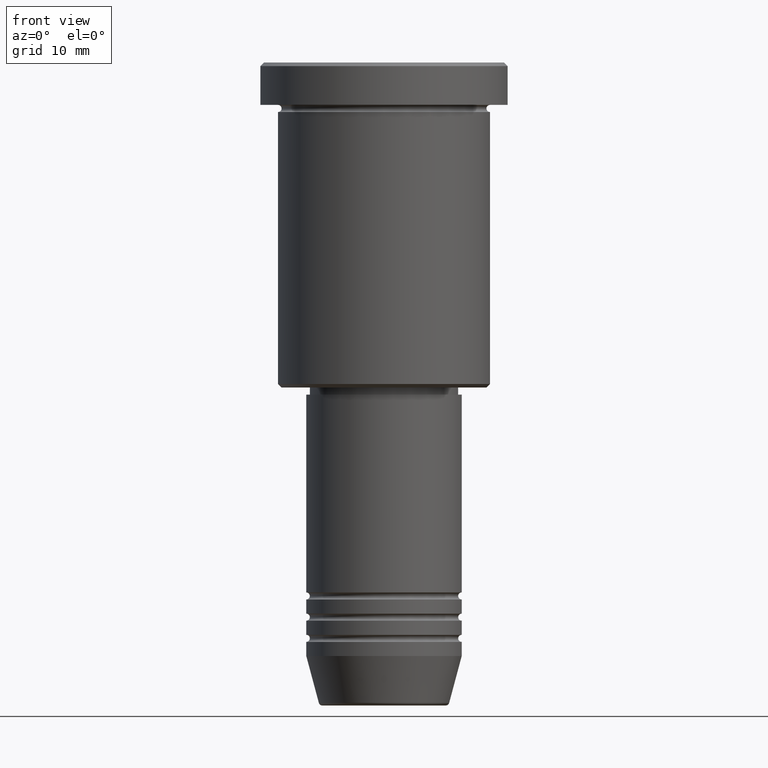
[diagram: clean part render]
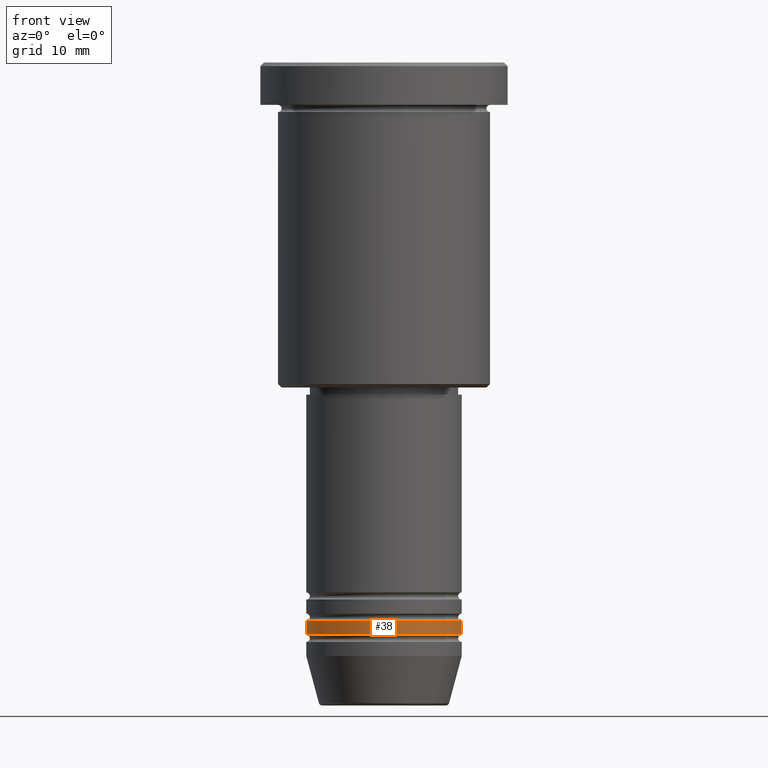
[diagram: same view with one face highlighted and labeled with its STEP entity id]
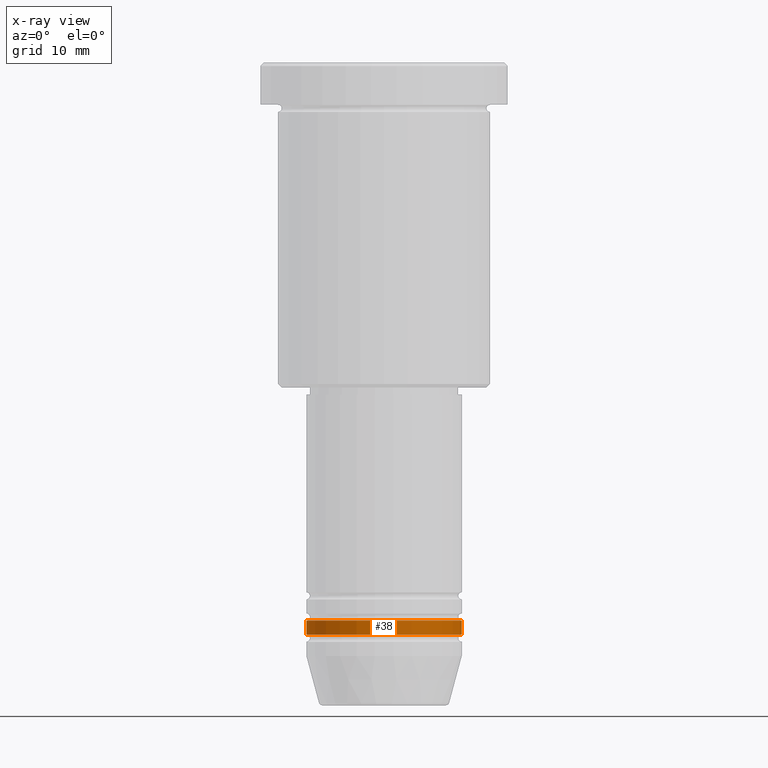
[diagram: x-ray of the same camera — body ghosted, the highlighted face saturated]
A machine part, front view. The second image highlights one B-rep face of the part: STEP entity #38.
The next image is the same camera in x-ray: the body ghosted, the highlighted face saturated — about 0% of this face is hidden behind the body in this view.
In plain terms, the highlighted cylindrical surface (partial cylindrical patch) has radius 11 mm, axis along (-0, -0, 1).
Its self-contained STEP definition (entity closure, byte-faithful):
#37 = LINE ( 'NONE', #1025, #930 ) ;
#38 = ADVANCED_FACE ( 'NONE', ( #492 ), #477, .T. ) ;
#56 = VERTEX_POINT ( 'NONE', #909 ) ;
#60 = AXIS2_PLACEMENT_3D ( 'NONE', #529, #1060, #1158 ) ;
#116 = DIRECTION ( 'NONE',  ( -0.000000000000000000, -0.000000000000000000, 1.000000000000000000 ) ) ;
#151 = CARTESIAN_POINT ( 'NONE',  ( 11.00000000000000000, 0.000000000000000000, -80.99999999999997158 ) ) ;
#209 = VECTOR ( 'NONE', #585, 1000.000000000000000 ) ;
#301 = EDGE_CURVE ( 'NONE', #882, #343, #850, .T. ) ;
#333 = AXIS2_PLACEMENT_3D ( 'NONE', #707, #897, #1063 ) ;
#343 = VERTEX_POINT ( 'NONE', #1179 ) ;
#396 = CARTESIAN_POINT ( 'NONE',  ( -11.00000000000000000, 1.347111479062088405E-15, 0.000000000000000000 ) ) ;
#409 = LINE ( 'NONE', #396, #209 ) ;
#477 = CYLINDRICAL_SURFACE ( 'NONE', #600, 11.00000000000000000 ) ;
#482 = DIRECTION ( 'NONE',  ( 1.000000000000000000, 0.000000000000000000, 0.000000000000000000 ) ) ;
#492 = FACE_OUTER_BOUND ( 'NONE', #1145, .T. ) ;
#529 = CARTESIAN_POINT ( 'NONE',  ( 0.000000000000000000, 0.000000000000000000, -78.99999999999997158 ) ) ;
#551 = CIRCLE ( 'NONE', #333, 11.00000000000000000 ) ;
#585 = DIRECTION ( 'NONE',  ( -0.000000000000000000, -0.000000000000000000, 1.000000000000000000 ) ) ;
#600 = AXIS2_PLACEMENT_3D ( 'NONE', #847, #116, #482 ) ;
#615 = ORIENTED_EDGE ( 'NONE', *, *, #1085, .T. ) ;
#620 = EDGE_CURVE ( 'NONE', #56, #882, #409, .T. ) ;
#707 = CARTESIAN_POINT ( 'NONE',  ( 0.000000000000000000, 0.000000000000000000, -80.99999999999997158 ) ) ;
#833 = EDGE_CURVE ( 'NONE', #56, #1157, #551, .T. ) ;
#847 = CARTESIAN_POINT ( 'NONE',  ( 0.000000000000000000, 0.000000000000000000, 0.000000000000000000 ) ) ;
#850 = CIRCLE ( 'NONE', #60, 11.00000000000000000 ) ;
#882 = VERTEX_POINT ( 'NONE', #1013 ) ;
#897 = DIRECTION ( 'NONE',  ( -0.000000000000000000, -0.000000000000000000, 1.000000000000000000 ) ) ;
#909 = CARTESIAN_POINT ( 'NONE',  ( -11.00000000000000000, 1.347111479062088405E-15, -80.99999999999997158 ) ) ;
#930 = VECTOR ( 'NONE', #1126, 1000.000000000000000 ) ;
#946 = ORIENTED_EDGE ( 'NONE', *, *, #833, .T. ) ;
#1003 = ORIENTED_EDGE ( 'NONE', *, *, #301, .F. ) ;
#1013 = CARTESIAN_POINT ( 'NONE',  ( -11.00000000000000000, 1.347111479062088405E-15, -78.99999999999997158 ) ) ;
#1025 = CARTESIAN_POINT ( 'NONE',  ( 11.00000000000000000, 0.000000000000000000, 0.000000000000000000 ) ) ;
#1060 = DIRECTION ( 'NONE',  ( -0.000000000000000000, -0.000000000000000000, 1.000000000000000000 ) ) ;
#1063 = DIRECTION ( 'NONE',  ( 1.000000000000000000, 0.000000000000000000, 0.000000000000000000 ) ) ;
#1085 = EDGE_CURVE ( 'NONE', #1157, #343, #37, .T. ) ;
#1126 = DIRECTION ( 'NONE',  ( -0.000000000000000000, -0.000000000000000000, 1.000000000000000000 ) ) ;
#1145 = EDGE_LOOP ( 'NONE', ( #1169, #946, #615, #1003 ) ) ;
#1157 = VERTEX_POINT ( 'NONE', #151 ) ;
#1158 = DIRECTION ( 'NONE',  ( 1.000000000000000000, 0.000000000000000000, 0.000000000000000000 ) ) ;
#1169 = ORIENTED_EDGE ( 'NONE', *, *, #620, .F. ) ;
#1179 = CARTESIAN_POINT ( 'NONE',  ( 11.00000000000000000, 0.000000000000000000, -78.99999999999997158 ) ) ;